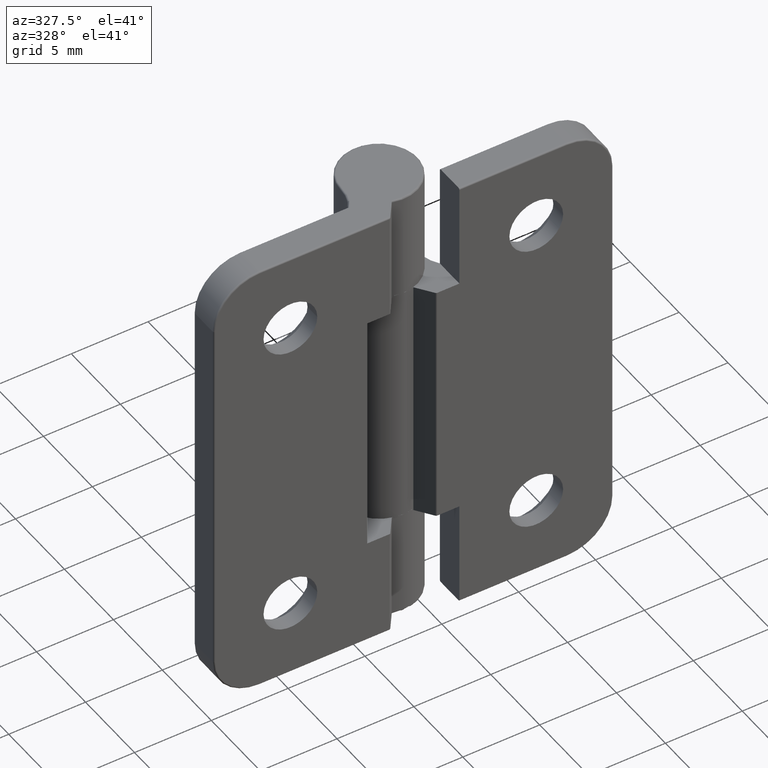
[diagram: clean part render]
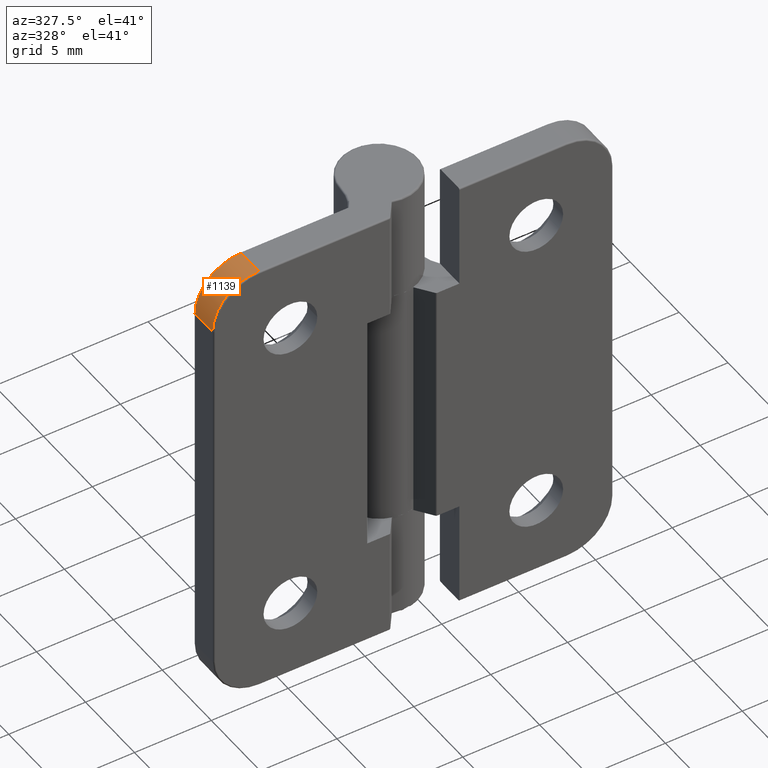
[diagram: same view with one face highlighted and labeled with its STEP entity id]
A machine part, auxiliary view. The second image highlights one B-rep face of the part: STEP entity #1139.
In plain terms, the highlighted cylindrical surface (partial cylindrical patch) has radius 3 mm, axis along (0, -1, 0).
Its self-contained STEP definition (entity closure, byte-faithful):
#73=CYLINDRICAL_SURFACE('',#1261,3.);
#141=CIRCLE('',#1223,3.);
#147=CIRCLE('',#1234,3.);
#232=FACE_OUTER_BOUND('',#314,.T.);
#314=EDGE_LOOP('',(#928,#929,#930,#931));
#404=LINE('',#1952,#474);
#407=LINE('',#1961,#477);
#474=VECTOR('',#1528,1.8);
#477=VECTOR('',#1541,1.79999999999999);
#544=VERTEX_POINT('',#1842);
#545=VERTEX_POINT('',#1846);
#553=VERTEX_POINT('',#1895);
#556=VERTEX_POINT('',#1913);
#660=EDGE_CURVE('',#545,#544,#141,.T.);
#674=EDGE_CURVE('',#556,#553,#147,.T.);
#694=EDGE_CURVE('',#545,#553,#404,.T.);
#698=EDGE_CURVE('',#556,#544,#407,.T.);
#928=ORIENTED_EDGE('',*,*,#660,.F.);
#929=ORIENTED_EDGE('',*,*,#694,.T.);
#930=ORIENTED_EDGE('',*,*,#674,.F.);
#931=ORIENTED_EDGE('',*,*,#698,.T.);
#1139=ADVANCED_FACE('',(#232),#73,.T.);
#1223=AXIS2_PLACEMENT_3D('',#1848,#1448,#1449);
#1234=AXIS2_PLACEMENT_3D('',#1915,#1475,#1476);
#1261=AXIS2_PLACEMENT_3D('',#1960,#1539,#1540);
#1448=DIRECTION('center_axis',(7.24058494320754E-17,-1.,0.));
#1449=DIRECTION('ref_axis',(-0.707106781186548,-5.20417042793042E-17,0.707106781186547));
#1475=DIRECTION('center_axis',(2.77555756156289E-17,1.,0.));
#1476=DIRECTION('ref_axis',(-0.707106781186548,1.73472347597681E-17,0.707106781186547));
#1528=DIRECTION('',(-1.11022302462516E-15,1.,0.));
#1539=DIRECTION('center_axis',(1.11022302462516E-15,-1.,0.));
#1540=DIRECTION('ref_axis',(-0.707106781186547,-7.85046229341887E-16,0.707106781186548));
#1541=DIRECTION('',(1.11022302462516E-15,-1.,0.));
#1842=CARTESIAN_POINT('',(-13.,0.099999999999999,12.));
#1846=CARTESIAN_POINT('',(-10.,0.100000000000002,15.));
#1848=CARTESIAN_POINT('Origin',(-10.,0.100000000000002,12.));
#1895=CARTESIAN_POINT('',(-10.,1.9,15.));
#1913=CARTESIAN_POINT('',(-13.,1.89999999999999,12.));
#1915=CARTESIAN_POINT('Origin',(-10.,1.89999999999999,12.));
#1952=CARTESIAN_POINT('',(-10.,2.74999999623623,15.));
#1960=CARTESIAN_POINT('Origin',(-10.,2.74999999623623,12.));
#1961=CARTESIAN_POINT('',(-13.,2.74999999623622,12.));